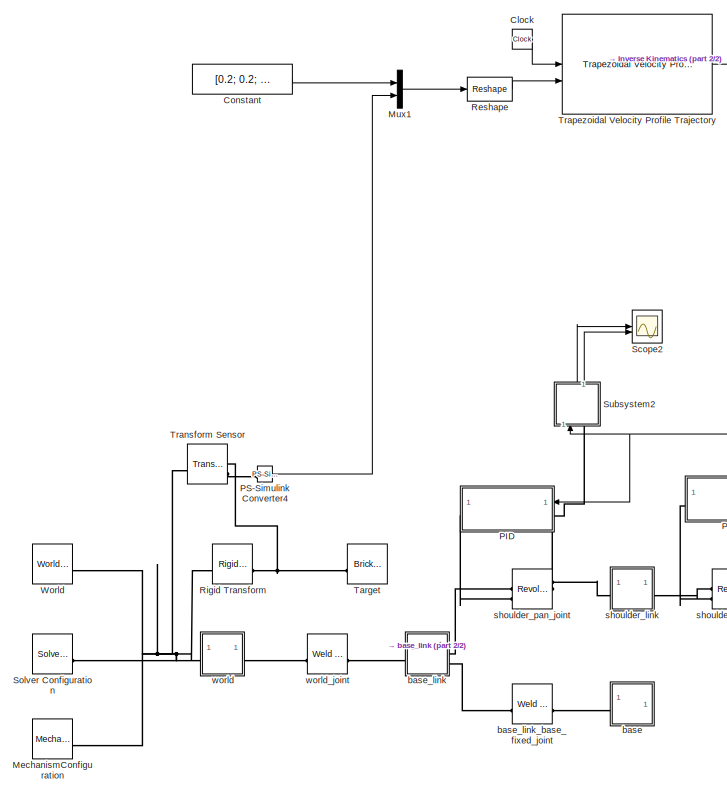
[diagram: root canvas - part 1/2, left side, full height]
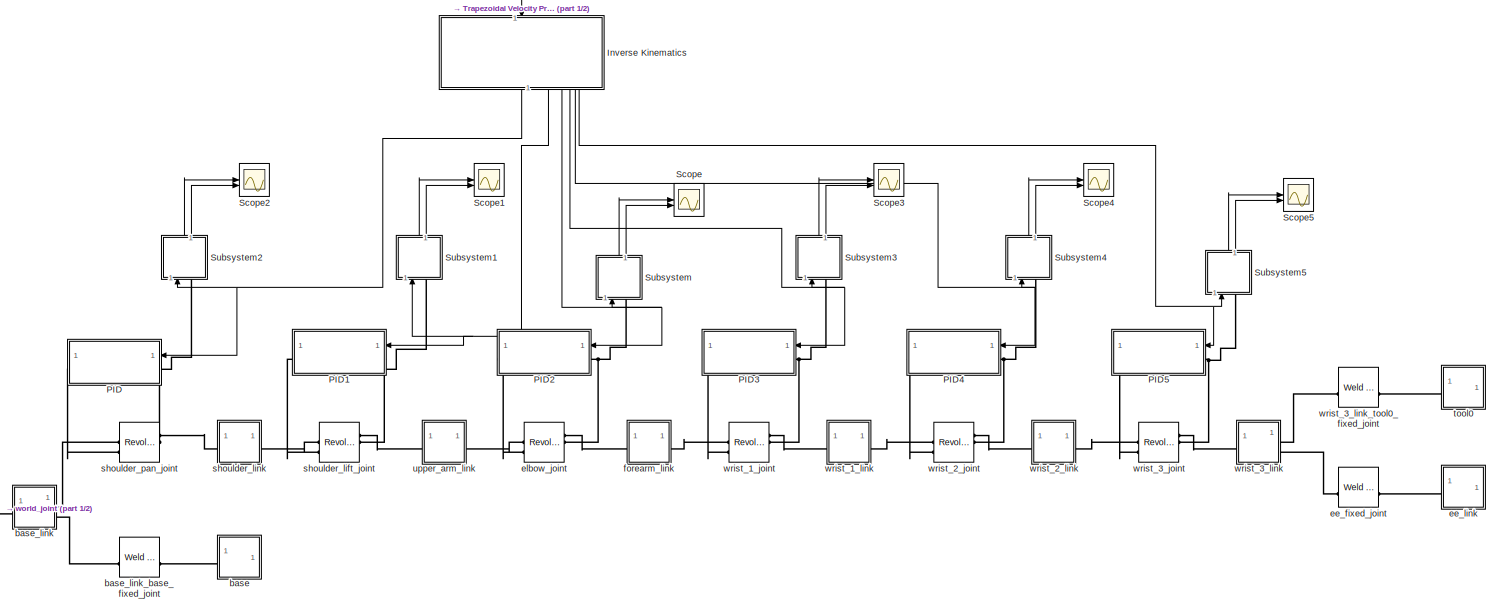
[diagram: root canvas - part 2/2, most of the canvas]
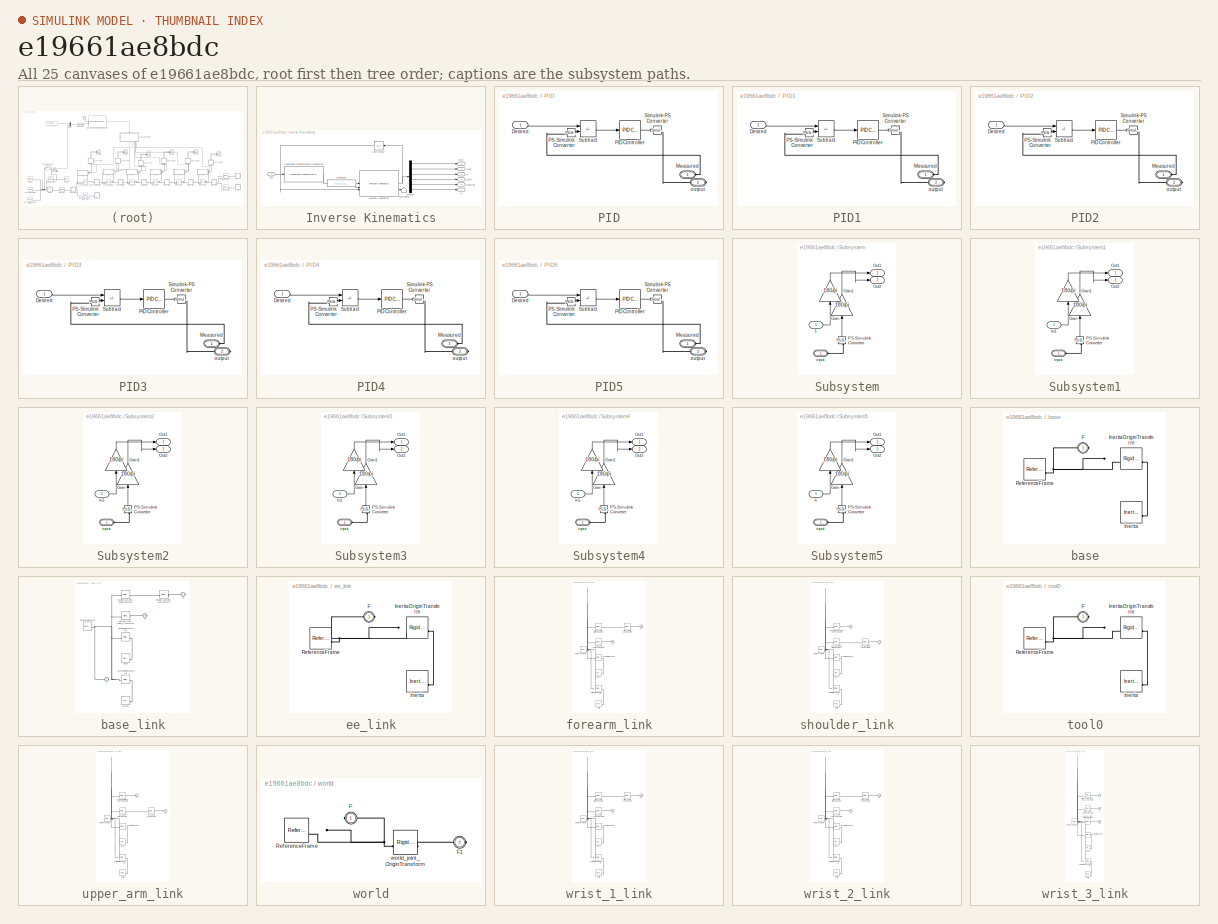
[diagram: thumbnail index - all 25 canvases of the model, root first then tree order]
MODEL slx_e19661ae8bdc
KIND model
CONFIG AbsTol = 1e-4
CONFIG EnableMultiTasking = off
CONFIG FixedStep = 0.001
CONFIG MaxStep = auto
CONFIG MinStep = auto
CONFIG RelTol = 1e-3
CONFIG SampleTimeConstraint = Unconstrained
CONFIG SolverName = ode15s
CONFIG StartTime = 0.0
CONFIG StopTime = 5
BLOCK [Clock] Clock
BLOCK [Constant] Constant
  Value = [0.2; 0.2; 0.2]
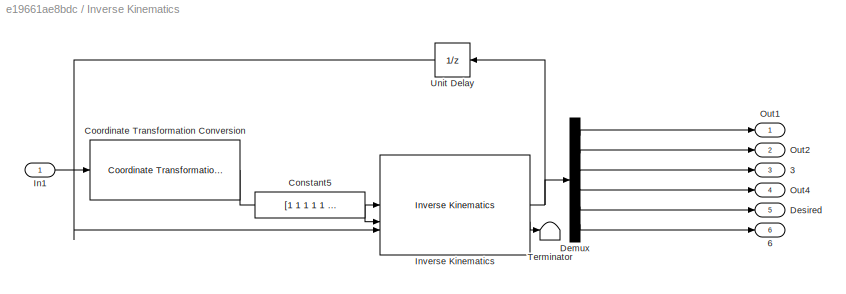
BLOCK [SubSystem] Inverse Kinematics
  NameLocation = left
BLOCK [Outport] Inverse Kinematics/3
  NameLocation = right
  Port = 3
BLOCK [Outport] Inverse Kinematics/6
  Port = 6
BLOCK [Constant] Inverse Kinematics/Constant5
  Value = [1 1 1 1 1 1]
BLOCK [Reference] Inverse Kinematics/Coordinate Transformation Conversion  REF=robotcorelib/Coordinate Transformation Conversion
  LibrarySourceBlock = robotutilslib/Coordinate Transformation Conversion
  SourceBlock = robotcorelib/Coordinate Transformation Conversion
  SourceType = robotics.slcore.internal.block.CoordinateTransformationConversion
BLOCK [Demux] Inverse Kinematics/Demux
  Outputs = 6
BLOCK [Outport] Inverse Kinematics/Desired
  Port = 5
BLOCK [Inport] Inverse Kinematics/In1
BLOCK [Reference] Inverse Kinematics/Inverse Kinematics  REF=robotmaniplib/Inverse Kinematics
  SourceBlock = robotmaniplib/Inverse Kinematics
  SourceType = Inverse Kinematics
BLOCK [Outport] Inverse Kinematics/Out1
  NameLocation = top
BLOCK [Outport] Inverse Kinematics/Out2
  NameLocation = top
  Port = 2
BLOCK [Outport] Inverse Kinematics/Out4
  Port = 4
BLOCK [Terminator] Inverse Kinematics/Terminator
BLOCK [UnitDelay] Inverse Kinematics/Unit Delay
  HasFrameUpgradeWarning = on
  InitialCondition = [0;0;0;0;0;0]
  SampleTime = -1
BLOCK [Reference] MechanismConfiguration  REF=sm_lib/Utilities/Mechanism
Configuration
  SourceBlock = sm_lib/Utilities/Mechanism\nConfiguration
  SourceType = Mechanism\nConfiguration
BLOCK [Mux] Mux1
  DisplayOption = bar
  Inputs = 2
BLOCK [SubSystem] PID
BLOCK [Inport] PID/Desired
BLOCK [PMIOPort] PID/Measured
  Side = Left
BLOCK [Reference] PID/PID Controller  REF=slpidlib/PID Controller
  LibrarySourceBlock = simulink/Continuous/PID Controller
  SourceBlock = slpidlib/PID Controller
  SourceType = PID 1dof
BLOCK [Reference] PID/PS-Simulink Converter  REF=nesl_utility/PS-Simulink
Converter
  SourceBlock = nesl_utility/PS-Simulink\nConverter
  SourceType = PS-Simulink\nConverter
BLOCK [Reference] PID/Simulink-PS Converter  REF=nesl_utility/Simulink-PS
Converter
  SourceBlock = nesl_utility/Simulink-PS\nConverter
  SourceType = Simulink-PS\nConverter
BLOCK [Sum] PID/Subtract
  IconShape = rectangular
  Inputs = +-
BLOCK [PMIOPort] PID/output
  Port = 2
  Side = Right
BLOCK [SubSystem] PID1
BLOCK [Inport] PID1/Desired
BLOCK [PMIOPort] PID1/Measured
  Side = Left
BLOCK [Reference] PID1/PID Controller  REF=slpidlib/PID Controller
  LibrarySourceBlock = simulink/Continuous/PID Controller
  SourceBlock = slpidlib/PID Controller
  SourceType = PID 1dof
BLOCK [Reference] PID1/PS-Simulink Converter  REF=nesl_utility/PS-Simulink
Converter
  SourceBlock = nesl_utility/PS-Simulink\nConverter
  SourceType = PS-Simulink\nConverter
BLOCK [Reference] PID1/Simulink-PS Converter  REF=nesl_utility/Simulink-PS
Converter
  SourceBlock = nesl_utility/Simulink-PS\nConverter
  SourceType = Simulink-PS\nConverter
BLOCK [Sum] PID1/Subtract
  IconShape = rectangular
  Inputs = +-
BLOCK [PMIOPort] PID1/output
  Port = 2
  Side = Right
BLOCK [SubSystem] PID2
BLOCK [Inport] PID2/Desired
BLOCK [PMIOPort] PID2/Measured
  Side = Left
BLOCK [Reference] PID2/PID Controller  REF=slpidlib/PID Controller
  LibrarySourceBlock = simulink/Continuous/PID Controller
  SourceBlock = slpidlib/PID Controller
  SourceType = PID 1dof
BLOCK [Reference] PID2/PS-Simulink Converter  REF=nesl_utility/PS-Simulink
Converter
  SourceBlock = nesl_utility/PS-Simulink\nConverter
  SourceType = PS-Simulink\nConverter
BLOCK [Reference] PID2/Simulink-PS Converter  REF=nesl_utility/Simulink-PS
Converter
  SourceBlock = nesl_utility/Simulink-PS\nConverter
  SourceType = Simulink-PS\nConverter
BLOCK [Sum] PID2/Subtract
  IconShape = rectangular
  Inputs = +-
BLOCK [PMIOPort] PID2/output
  Port = 2
  Side = Right
BLOCK [SubSystem] PID3
BLOCK [Inport] PID3/Desired
BLOCK [PMIOPort] PID3/Measured
  Side = Left
BLOCK [Reference] PID3/PID Controller  REF=slpidlib/PID Controller
  LibrarySourceBlock = simulink/Continuous/PID Controller
  SourceBlock = slpidlib/PID Controller
  SourceType = PID 1dof
BLOCK [Reference] PID3/PS-Simulink Converter  REF=nesl_utility/PS-Simulink
Converter
  SourceBlock = nesl_utility/PS-Simulink\nConverter
  SourceType = PS-Simulink\nConverter
BLOCK [Reference] PID3/Simulink-PS Converter  REF=nesl_utility/Simulink-PS
Converter
  SourceBlock = nesl_utility/Simulink-PS\nConverter
  SourceType = Simulink-PS\nConverter
BLOCK [Sum] PID3/Subtract
  IconShape = rectangular
  Inputs = +-
BLOCK [PMIOPort] PID3/output
  Port = 2
  Side = Right
BLOCK [SubSystem] PID4
BLOCK [Inport] PID4/Desired
BLOCK [PMIOPort] PID4/Measured
  Side = Left
BLOCK [Reference] PID4/PID Controller  REF=slpidlib/PID Controller
  LibrarySourceBlock = simulink/Continuous/PID Controller
  SourceBlock = slpidlib/PID Controller
  SourceType = PID 1dof
BLOCK [Reference] PID4/PS-Simulink Converter  REF=nesl_utility/PS-Simulink
Converter
  SourceBlock = nesl_utility/PS-Simulink\nConverter
  SourceType = PS-Simulink\nConverter
BLOCK [Reference] PID4/Simulink-PS Converter  REF=nesl_utility/Simulink-PS
Converter
  SourceBlock = nesl_utility/Simulink-PS\nConverter
  SourceType = Simulink-PS\nConverter
BLOCK [Sum] PID4/Subtract
  IconShape = rectangular
  Inputs = +-
BLOCK [PMIOPort] PID4/output
  Port = 2
  Side = Right
BLOCK [SubSystem] PID5
BLOCK [Inport] PID5/Desired
BLOCK [PMIOPort] PID5/Measured
  Side = Left
BLOCK [Reference] PID5/PID Controller  REF=slpidlib/PID Controller
  LibrarySourceBlock = simulink/Continuous/PID Controller
  SourceBlock = slpidlib/PID Controller
  SourceType = PID 1dof
BLOCK [Reference] PID5/PS-Simulink Converter  REF=nesl_utility/PS-Simulink
Converter
  SourceBlock = nesl_utility/PS-Simulink\nConverter
  SourceType = PS-Simulink\nConverter
BLOCK [Reference] PID5/Simulink-PS Converter  REF=nesl_utility/Simulink-PS
Converter
  SourceBlock = nesl_utility/Simulink-PS\nConverter
  SourceType = Simulink-PS\nConverter
BLOCK [Sum] PID5/Subtract
  IconShape = rectangular
  Inputs = +-
BLOCK [PMIOPort] PID5/output
  Port = 2
  Side = Right
BLOCK [Reference] PS-Simulink Converter4  REF=nesl_utility/PS-Simulink
Converter
  SourceBlock = nesl_utility/PS-Simulink\nConverter
  SourceType = PS-Simulink\nConverter
BLOCK [Reshape] Reshape
  OutputDimensionality = Customize
  OutputDimensions = [3 2]
BLOCK [Reference] Rigid Transform  REF=sm_lib/Frames and
Transforms/Rigid
Transform
  SourceBlock = sm_lib/Frames and\nTransforms/Rigid\nTransform
  SourceType = Rigid\nTransform
BLOCK [Scope] Scope
  ActiveDisplayYMaximum = 202.56245542600516
  ActiveDisplayYMinimum = -225.28958811023898
  Commented = on
  Floating = off
  GraphicalSettings = {"Style":{"BackgroundColor":[0.12941176470588237,0.12941176470588237,0.12941176470588237],"AxesColor":[0.07058823529411765,0.07058823529411765,0.07058823529411765],"LabelsColor":[0.8509803921568627,0.8509803921568627,0.8509803921568627],"PreserveColors":false,"Visible":[true,true],"LineStyle":["-","-"],"LineWidth":[1.5,1.5],"BarWidth":[0.9,0.9],"LineColor":["auto","auto"],"LineFaceAlpha":[1,1],"Li...<+2128ch>
  MultipleDisplayCache = [{"MaxYLimMag":225.28958811023898,"MaxYLimReal":202.56245542600516,"MinYLimMag":0,"MinYLimReal":-225.28958811023898,"PlotAsMagnitudePhase":false,"ShowGrid":true,"ShowLegend":true,"Title":"%<SignalLabel>","YLabel":""}]
  NumInputPorts = 2
  ScopeFrameLocation = window
  ShowLegend = on
  WasSavedAsWebScope = on
  WindowPosition = [607.000000,280.000000,908.000000,592.000000,]
BLOCK [Scope] Scope1
  ActiveDisplayYMaximum = 87.29011256368284
  ActiveDisplayYMinimum = -414.43673032319282
  Commented = on
  DataLoggingVariableName = ScopeData1
  Floating = off
  GraphicalSettings = {"Style":{"BackgroundColor":[0.12941176470588237,0.12941176470588237,0.12941176470588237],"AxesColor":[0.07058823529411765,0.07058823529411765,0.07058823529411765],"LabelsColor":[0.8509803921568627,0.8509803921568627,0.8509803921568627],"PreserveColors":false,"Visible":[true,true],"LineStyle":["-","-"],"LineWidth":[1.5,1.5],"BarWidth":[0.9,0.9],"LineColor":["auto","auto"],"LineFaceAlpha":[1,1],"Li...<+2132ch>
  MultipleDisplayCache = [{"MaxYLimMag":414.43673032319282,"MaxYLimReal":87.29011256368284,"MinYLimMag":0,"MinYLimReal":-414.43673032319282,"PlotAsMagnitudePhase":false,"ShowGrid":true,"ShowLegend":true,"Title":"%<SignalLabel>","YLabel":""}]
  NumInputPorts = 2
  ScopeFrameLocation = window
  ShowLegend = on
  WasSavedAsWebScope = on
  WindowPosition = [925.000000,497.000000,732.000000,459.000000,]
BLOCK [Scope] Scope2
  ActiveDisplayYMaximum = 45.031871239717681
  ActiveDisplayYMinimum = -405.28684115745921
  Commented = on
  DataLoggingVariableName = ScopeData2
  Floating = off
  GraphicalSettings = {"Style":{"BackgroundColor":[0.12941176470588237,0.12941176470588237,0.12941176470588237],"AxesColor":[0.07058823529411765,0.07058823529411765,0.07058823529411765],"LabelsColor":[0.8509803921568627,0.8509803921568627,0.8509803921568627],"PreserveColors":false,"Visible":[true,true],"LineStyle":["-","-"],"LineWidth":[1.5,1.5],"BarWidth":[0.9,0.9],"LineColor":["auto","auto"],"LineFaceAlpha":[1,1],"Li...<+2132ch>
  MultipleDisplayCache = [{"MaxYLimMag":405.28684115745921,"MaxYLimReal":45.031871239717681,"MinYLimMag":0,"MinYLimReal":-405.28684115745921,"PlotAsMagnitudePhase":false,"ShowGrid":true,"ShowLegend":true,"Title":"%<SignalLabel>","YLabel":""}]
  NumInputPorts = 2
  ScopeFrameLocation = window
  ShowLegend = on
  WasSavedAsWebScope = on
  WindowPosition = [425.000000,235.000000,732.000000,459.000000,]
BLOCK [Scope] Scope3
  ActiveDisplayYMaximum = 57.261087257852438
  ActiveDisplayYMinimum = -406.36234302868422
  Commented = on
  DataLoggingVariableName = ScopeData3
  Floating = off
  GraphicalSettings = {"Style":{"BackgroundColor":[0.12941176470588237,0.12941176470588237,0.12941176470588237],"AxesColor":[0.07058823529411765,0.07058823529411765,0.07058823529411765],"LabelsColor":[0.8509803921568627,0.8509803921568627,0.8509803921568627],"PreserveColors":false,"Visible":[true,true],"LineStyle":["-","-"],"LineWidth":[1.5,1.5],"BarWidth":[0.9,0.9],"LineColor":["auto","auto"],"LineFaceAlpha":[1,1],"Li...<+2126ch>
  MultipleDisplayCache = [{"MaxYLimMag":406.36234302868422,"MaxYLimReal":57.261087257852438,"MinYLimMag":0,"MinYLimReal":-406.36234302868422,"PlotAsMagnitudePhase":false,"ShowGrid":true,"ShowLegend":true,"Title":"%<SignalLabel>","YLabel":""}]
  NumInputPorts = 2
  ScopeFrameLocation = window
  ShowLegend = on
  WasSavedAsWebScope = on
  WindowPosition = [717.000000,306.000000,732.000000,459.000000,]
BLOCK [Scope] Scope4
  ActiveDisplayYMaximum = 438.80355858492811
  ActiveDisplayYMinimum = -349.232027264116
  Commented = on
  DataLoggingVariableName = ScopeData4
  Floating = off
  GraphicalSettings = {"Style":{"BackgroundColor":[0.12941176470588237,0.12941176470588237,0.12941176470588237],"AxesColor":[0.07058823529411765,0.07058823529411765,0.07058823529411765],"LabelsColor":[0.8509803921568627,0.8509803921568627,0.8509803921568627],"PreserveColors":false,"Visible":[true,true],"LineStyle":["-","-"],"LineWidth":[1.5,1.5],"BarWidth":[0.9,0.9],"LineColor":["auto","auto"],"LineFaceAlpha":[1,1],"Li...<+2130ch>
  MultipleDisplayCache = [{"MaxYLimMag":438.80355858492811,"MaxYLimReal":438.80355858492811,"MinYLimMag":0,"MinYLimReal":-349.232027264116,"PlotAsMagnitudePhase":false,"ShowGrid":true,"ShowLegend":true,"Title":"%<SignalLabel>","YLabel":""}]
  NumInputPorts = 2
  ScopeFrameLocation = window
  ShowLegend = on
  WasSavedAsWebScope = on
  WindowPosition = [776.000000,258.000000,732.000000,459.000000,]
BLOCK [Scope] Scope5
  ActiveDisplayYMaximum = 456.50769702271174
  ActiveDisplayYMinimum = -454.83123589994807
  Commented = on
  DataLoggingVariableName = ScopeData5
  Floating = off
  GraphicalSettings = {"Style":{"BackgroundColor":[0.12941176470588237,0.12941176470588237,0.12941176470588237],"AxesColor":[0.07058823529411765,0.07058823529411765,0.07058823529411765],"LabelsColor":[0.8509803921568627,0.8509803921568627,0.8509803921568627],"PreserveColors":false,"Visible":[true,true],"LineStyle":["-","-"],"LineWidth":[1.5,1.5],"BarWidth":[0.9,0.9],"LineColor":["auto","auto"],"LineFaceAlpha":[1,1],"Li...<+2128ch>
  MultipleDisplayCache = [{"MaxYLimMag":456.50769702271174,"MaxYLimReal":456.50769702271174,"MinYLimMag":0,"MinYLimReal":-454.83123589994807,"PlotAsMagnitudePhase":false,"ShowGrid":true,"ShowLegend":true,"Title":"%<SignalLabel>","YLabel":""}]
  NumInputPorts = 2
  ScopeFrameLocation = window
  ShowLegend = on
  WasSavedAsWebScope = on
  WindowPosition = [678.000000,358.000000,732.000000,459.000000,]
BLOCK [Reference] Solver Configuration  REF=nesl_utility/Solver
Configuration
  SourceBlock = nesl_utility/Solver\nConfiguration
  SourceType = Solver\nConfiguration
BLOCK [SubSystem] Subsystem
  Commented = on
  NameLocation = right
BLOCK [Inport] Subsystem/1
BLOCK [Gain] Subsystem/Gain
  Gain = 180/pi
  NameLocation = right
BLOCK [Gain] Subsystem/Gain1
  Gain = 180/pi
  NameLocation = right
BLOCK [Outport] Subsystem/Out1
BLOCK [Outport] Subsystem/Out2
  Port = 2
BLOCK [Reference] Subsystem/PS-Simulink Converter  REF=nesl_utility/PS-Simulink
Converter
  NameLocation = right
  SourceBlock = nesl_utility/PS-Simulink\nConverter
  SourceType = PS-Simulink\nConverter
BLOCK [PMIOPort] Subsystem/input
  Side = Left
BLOCK [SubSystem] Subsystem1
  Commented = on
  NameLocation = right
BLOCK [Gain] Subsystem1/Gain
  Gain = 180/pi
  NameLocation = right
BLOCK [Gain] Subsystem1/Gain1
  Gain = 180/pi
  NameLocation = right
BLOCK [Inport] Subsystem1/In1
BLOCK [Outport] Subsystem1/Out1
BLOCK [Outport] Subsystem1/Out2
  Port = 2
BLOCK [Reference] Subsystem1/PS-Simulink Converter  REF=nesl_utility/PS-Simulink
Converter
  NameLocation = right
  SourceBlock = nesl_utility/PS-Simulink\nConverter
  SourceType = PS-Simulink\nConverter
BLOCK [PMIOPort] Subsystem1/input
  Side = Left
BLOCK [SubSystem] Subsystem2
  Commented = on
  NameLocation = right
BLOCK [Gain] Subsystem2/Gain
  Gain = 180/pi
  NameLocation = right
BLOCK [Gain] Subsystem2/Gain1
  Gain = 180/pi
  NameLocation = right
BLOCK [Inport] Subsystem2/In1
BLOCK [Outport] Subsystem2/Out1
BLOCK [Outport] Subsystem2/Out2
  Port = 2
BLOCK [Reference] Subsystem2/PS-Simulink Converter  REF=nesl_utility/PS-Simulink
Converter
  NameLocation = right
  SourceBlock = nesl_utility/PS-Simulink\nConverter
  SourceType = PS-Simulink\nConverter
BLOCK [PMIOPort] Subsystem2/input
  Side = Left
BLOCK [SubSystem] Subsystem3
  Commented = on
  NameLocation = right
BLOCK [Gain] Subsystem3/Gain
  Gain = 180/pi
  NameLocation = right
BLOCK [Gain] Subsystem3/Gain1
  Gain = 180/pi
  NameLocation = right
BLOCK [Inport] Subsystem3/In1
BLOCK [Outport] Subsystem3/Out1
BLOCK [Outport] Subsystem3/Out2
  Port = 2
BLOCK [Reference] Subsystem3/PS-Simulink Converter  REF=nesl_utility/PS-Simulink
Converter
  NameLocation = right
  SourceBlock = nesl_utility/PS-Simulink\nConverter
  SourceType = PS-Simulink\nConverter
BLOCK [PMIOPort] Subsystem3/input
  Side = Left
BLOCK [SubSystem] Subsystem4
  Commented = on
  NameLocation = right
BLOCK [Gain] Subsystem4/Gain
  Gain = 180/pi
  NameLocation = right
BLOCK [Gain] Subsystem4/Gain1
  Gain = 180/pi
  NameLocation = right
BLOCK [Inport] Subsystem4/In1
BLOCK [Outport] Subsystem4/Out1
BLOCK [Outport] Subsystem4/Out2
  Port = 2
BLOCK [Reference] Subsystem4/PS-Simulink Converter  REF=nesl_utility/PS-Simulink
Converter
  NameLocation = right
  SourceBlock = nesl_utility/PS-Simulink\nConverter
  SourceType = PS-Simulink\nConverter
BLOCK [PMIOPort] Subsystem4/input
  Side = Left
BLOCK [SubSystem] Subsystem5
  Commented = on
  NameLocation = right
BLOCK [Inport] Subsystem5/6
BLOCK [Gain] Subsystem5/Gain
  Gain = 180/pi
  NameLocation = right
BLOCK [Gain] Subsystem5/Gain1
  Gain = 180/pi
  NameLocation = right
BLOCK [Outport] Subsystem5/Out1
BLOCK [Outport] Subsystem5/Out2
  Port = 2
BLOCK [Reference] Subsystem5/PS-Simulink Converter  REF=nesl_utility/PS-Simulink
Converter
  NameLocation = right
  SourceBlock = nesl_utility/PS-Simulink\nConverter
  SourceType = PS-Simulink\nConverter
BLOCK [PMIOPort] Subsystem5/input
  Side = Left
BLOCK [Reference] Target  REF=sm_lib/Body Elements/Brick Solid
  SourceBlock = sm_lib/Body Elements/Brick Solid
  SourceType = Brick Solid
BLOCK [Reference] Transform Sensor  REF=sm_lib/Frames and
Transforms/Transform
Sensor
  SourceBlock = sm_lib/Frames and\nTransforms/Transform\nSensor
  SourceType = Transform\nSensor
BLOCK [Reference] Trapezoidal Velocity Profile Trajectory  REF=robotcorelib/Trapezoidal Velocity Profile Trajectory
  LibrarySourceBlock = robotutilslib/Trapezoidal Velocity Profile Trajectory
  SourceBlock = robotcorelib/Trapezoidal Velocity Profile Trajectory
  SourceType = robotics.slcore.internal.block.TrapVelTrajSys
BLOCK [Reference] World  REF=sm_lib/Frames and
Transforms/World Frame
  SourceBlock = sm_lib/Frames and\nTransforms/World Frame
  SourceType = World Frame
BLOCK [SubSystem] base
BLOCK [PMIOPort] base/F
  Side = Left
BLOCK [Reference] base/Inertia  REF=sm_lib/Body Elements/Inertia
  SourceBlock = sm_lib/Body Elements/Inertia
  SourceType = Inertia
BLOCK [Reference] base/InertiaOriginTransform  REF=sm_lib/Frames and
Transforms/Rigid
Transform
  SourceBlock = sm_lib/Frames and\nTransforms/Rigid\nTransform
  SourceType = Rigid\nTransform
BLOCK [Reference] base/ReferenceFrame  REF=sm_lib/Frames and
Transforms/Reference
Frame
  SourceBlock = sm_lib/Frames and\nTransforms/Reference\nFrame
  SourceType = Reference\nFrame
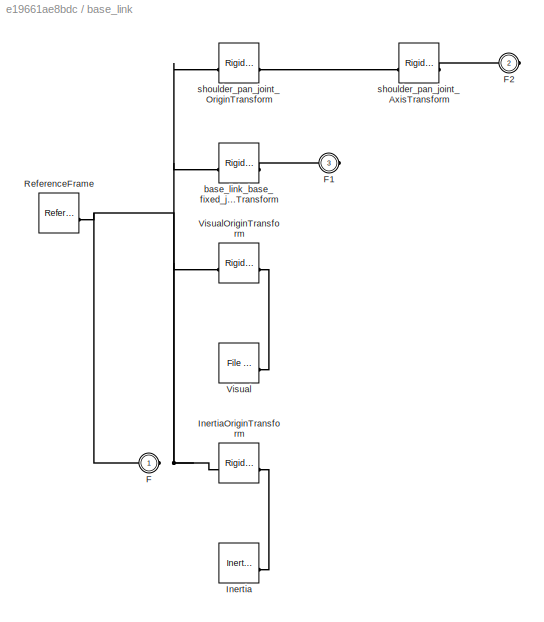
BLOCK [SubSystem] base_link
BLOCK [PMIOPort] base_link/F
  Side = Left
BLOCK [PMIOPort] base_link/F1
  Port = 3
  Side = Right
BLOCK [PMIOPort] base_link/F2
  Port = 2
  Side = Right
BLOCK [Reference] base_link/Inertia  REF=sm_lib/Body Elements/Inertia
  SourceBlock = sm_lib/Body Elements/Inertia
  SourceType = Inertia
BLOCK [Reference] base_link/InertiaOriginTransform  REF=sm_lib/Frames and
Transforms/Rigid
Transform
  SourceBlock = sm_lib/Frames and\nTransforms/Rigid\nTransform
  SourceType = Rigid\nTransform
BLOCK [Reference] base_link/ReferenceFrame  REF=sm_lib/Frames and
Transforms/Reference
Frame
  SourceBlock = sm_lib/Frames and\nTransforms/Reference\nFrame
  SourceType = Reference\nFrame
BLOCK [Reference] base_link/Visual  REF=sm_lib/Body Elements/File Solid
  SourceBlock = sm_lib/Body Elements/File Solid
  SourceType = File Solid
BLOCK [Reference] base_link/VisualOriginTransform  REF=sm_lib/Frames and
Transforms/Rigid
Transform
  SourceBlock = sm_lib/Frames and\nTransforms/Rigid\nTransform
  SourceType = Rigid\nTransform
BLOCK [Reference] base_link/base_link_base_fixed_joint_OriginTransform  REF=sm_lib/Frames and
Transforms/Rigid
Transform
  SourceBlock = sm_lib/Frames and\nTransforms/Rigid\nTransform
  SourceType = Rigid\nTransform
BLOCK [Reference] base_link/shoulder_pan_joint_AxisTransform  REF=sm_lib/Frames and
Transforms/Rigid
Transform
  SourceBlock = sm_lib/Frames and\nTransforms/Rigid\nTransform
  SourceType = Rigid\nTransform
BLOCK [Reference] base_link/shoulder_pan_joint_OriginTransform  REF=sm_lib/Frames and
Transforms/Rigid
Transform
  SourceBlock = sm_lib/Frames and\nTransforms/Rigid\nTransform
  SourceType = Rigid\nTransform
BLOCK [Reference] base_link_base_fixed_joint  REF=sm_lib/Joints/Weld Joint
  SourceBlock = sm_lib/Joints/Weld Joint
  SourceType = Weld Joint
BLOCK [Reference] ee_fixed_joint  REF=sm_lib/Joints/Weld Joint
  SourceBlock = sm_lib/Joints/Weld Joint
  SourceType = Weld Joint
BLOCK [SubSystem] ee_link
BLOCK [PMIOPort] ee_link/F
  Side = Left
BLOCK [Reference] ee_link/Inertia  REF=sm_lib/Body Elements/Inertia
  SourceBlock = sm_lib/Body Elements/Inertia
  SourceType = Inertia
BLOCK [Reference] ee_link/InertiaOriginTransform  REF=sm_lib/Frames and
Transforms/Rigid
Transform
  SourceBlock = sm_lib/Frames and\nTransforms/Rigid\nTransform
  SourceType = Rigid\nTransform
BLOCK [Reference] ee_link/ReferenceFrame  REF=sm_lib/Frames and
Transforms/Reference
Frame
  SourceBlock = sm_lib/Frames and\nTransforms/Reference\nFrame
  SourceType = Reference\nFrame
BLOCK [Reference] elbow_joint  REF=sm_lib/Joints/Revolute Joint
  SourceBlock = sm_lib/Joints/Revolute Joint
  SourceType = Revolute Joint
BLOCK [SubSystem] forearm_link
BLOCK [PMIOPort] forearm_link/F
  Side = Left
BLOCK [PMIOPort] forearm_link/F1
  Port = 2
  Side = Right
BLOCK [Reference] forearm_link/Inertia  REF=sm_lib/Body Elements/Inertia
  SourceBlock = sm_lib/Body Elements/Inertia
  SourceType = Inertia
BLOCK [Reference] forearm_link/InertiaOriginTransform  REF=sm_lib/Frames and
Transforms/Rigid
Transform
  SourceBlock = sm_lib/Frames and\nTransforms/Rigid\nTransform
  SourceType = Rigid\nTransform
BLOCK [Reference] forearm_link/ReferenceFrame  REF=sm_lib/Frames and
Transforms/Reference
Frame
  SourceBlock = sm_lib/Frames and\nTransforms/Reference\nFrame
  SourceType = Reference\nFrame
BLOCK [Reference] forearm_link/Visual  REF=sm_lib/Body Elements/File Solid
  SourceBlock = sm_lib/Body Elements/File Solid
  SourceType = File Solid
BLOCK [Reference] forearm_link/VisualOriginTransform  REF=sm_lib/Frames and
Transforms/Rigid
Transform
  SourceBlock = sm_lib/Frames and\nTransforms/Rigid\nTransform
  SourceType = Rigid\nTransform
BLOCK [Reference] forearm_link/elbow_joint_AxisInvTransform  REF=sm_lib/Frames and
Transforms/Rigid
Transform
  SourceBlock = sm_lib/Frames and\nTransforms/Rigid\nTransform
  SourceType = Rigid\nTransform
BLOCK [Reference] forearm_link/wrist_1_joint_AxisTransform  REF=sm_lib/Frames and
Transforms/Rigid
Transform
  SourceBlock = sm_lib/Frames and\nTransforms/Rigid\nTransform
  SourceType = Rigid\nTransform
BLOCK [Reference] forearm_link/wrist_1_joint_OriginTransform  REF=sm_lib/Frames and
Transforms/Rigid
Transform
  SourceBlock = sm_lib/Frames and\nTransforms/Rigid\nTransform
  SourceType = Rigid\nTransform
BLOCK [Reference] shoulder_lift_joint  REF=sm_lib/Joints/Revolute Joint
  SourceBlock = sm_lib/Joints/Revolute Joint
  SourceType = Revolute Joint
BLOCK [SubSystem] shoulder_link
BLOCK [PMIOPort] shoulder_link/F
  Side = Left
BLOCK [PMIOPort] shoulder_link/F1
  Port = 2
  Side = Right
BLOCK [Reference] shoulder_link/Inertia  REF=sm_lib/Body Elements/Inertia
  SourceBlock = sm_lib/Body Elements/Inertia
  SourceType = Inertia
BLOCK [Reference] shoulder_link/InertiaOriginTransform  REF=sm_lib/Frames and
Transforms/Rigid
Transform
  SourceBlock = sm_lib/Frames and\nTransforms/Rigid\nTransform
  SourceType = Rigid\nTransform
BLOCK [Reference] shoulder_link/ReferenceFrame  REF=sm_lib/Frames and
Transforms/Reference
Frame
  SourceBlock = sm_lib/Frames and\nTransforms/Reference\nFrame
  SourceType = Reference\nFrame
BLOCK [Reference] shoulder_link/Visual  REF=sm_lib/Body Elements/File Solid
  SourceBlock = sm_lib/Body Elements/File Solid
  SourceType = File Solid
BLOCK [Reference] shoulder_link/VisualOriginTransform  REF=sm_lib/Frames and
Transforms/Rigid
Transform
  SourceBlock = sm_lib/Frames and\nTransforms/Rigid\nTransform
  SourceType = Rigid\nTransform
BLOCK [Reference] shoulder_link/shoulder_lift_joint_AxisTransform  REF=sm_lib/Frames and
Transforms/Rigid
Transform
  SourceBlock = sm_lib/Frames and\nTransforms/Rigid\nTransform
  SourceType = Rigid\nTransform
BLOCK [Reference] shoulder_link/shoulder_lift_joint_OriginTransform  REF=sm_lib/Frames and
Transforms/Rigid
Transform
  SourceBlock = sm_lib/Frames and\nTransforms/Rigid\nTransform
  SourceType = Rigid\nTransform
BLOCK [Reference] shoulder_link/shoulder_pan_joint_AxisInvTransform  REF=sm_lib/Frames and
Transforms/Rigid
Transform
  SourceBlock = sm_lib/Frames and\nTransforms/Rigid\nTransform
  SourceType = Rigid\nTransform
BLOCK [Reference] shoulder_pan_joint  REF=sm_lib/Joints/Revolute Joint
  SourceBlock = sm_lib/Joints/Revolute Joint
  SourceType = Revolute Joint
BLOCK [SubSystem] tool0
BLOCK [PMIOPort] tool0/F
  Side = Left
BLOCK [Reference] tool0/Inertia  REF=sm_lib/Body Elements/Inertia
  SourceBlock = sm_lib/Body Elements/Inertia
  SourceType = Inertia
BLOCK [Reference] tool0/InertiaOriginTransform  REF=sm_lib/Frames and
Transforms/Rigid
Transform
  SourceBlock = sm_lib/Frames and\nTransforms/Rigid\nTransform
  SourceType = Rigid\nTransform
BLOCK [Reference] tool0/ReferenceFrame  REF=sm_lib/Frames and
Transforms/Reference
Frame
  SourceBlock = sm_lib/Frames and\nTransforms/Reference\nFrame
  SourceType = Reference\nFrame
BLOCK [SubSystem] upper_arm_link
BLOCK [PMIOPort] upper_arm_link/F
  Side = Left
BLOCK [PMIOPort] upper_arm_link/F1
  Port = 2
  Side = Right
BLOCK [Reference] upper_arm_link/Inertia  REF=sm_lib/Body Elements/Inertia
  SourceBlock = sm_lib/Body Elements/Inertia
  SourceType = Inertia
BLOCK [Reference] upper_arm_link/InertiaOriginTransform  REF=sm_lib/Frames and
Transforms/Rigid
Transform
  SourceBlock = sm_lib/Frames and\nTransforms/Rigid\nTransform
  SourceType = Rigid\nTransform
BLOCK [Reference] upper_arm_link/ReferenceFrame  REF=sm_lib/Frames and
Transforms/Reference
Frame
  SourceBlock = sm_lib/Frames and\nTransforms/Reference\nFrame
  SourceType = Reference\nFrame
BLOCK [Reference] upper_arm_link/Visual  REF=sm_lib/Body Elements/File Solid
  SourceBlock = sm_lib/Body Elements/File Solid
  SourceType = File Solid
BLOCK [Reference] upper_arm_link/VisualOriginTransform  REF=sm_lib/Frames and
Transforms/Rigid
Transform
  SourceBlock = sm_lib/Frames and\nTransforms/Rigid\nTransform
  SourceType = Rigid\nTransform
BLOCK [Reference] upper_arm_link/elbow_joint_AxisTransform  REF=sm_lib/Frames and
Transforms/Rigid
Transform
  SourceBlock = sm_lib/Frames and\nTransforms/Rigid\nTransform
  SourceType = Rigid\nTransform
BLOCK [Reference] upper_arm_link/elbow_joint_OriginTransform  REF=sm_lib/Frames and
Transforms/Rigid
Transform
  SourceBlock = sm_lib/Frames and\nTransforms/Rigid\nTransform
  SourceType = Rigid\nTransform
BLOCK [Reference] upper_arm_link/shoulder_lift_joint_AxisInvTransform  REF=sm_lib/Frames and
Transforms/Rigid
Transform
  SourceBlock = sm_lib/Frames and\nTransforms/Rigid\nTransform
  SourceType = Rigid\nTransform
BLOCK [SubSystem] world
BLOCK [PMIOPort] world/F
  Side = Left
BLOCK [PMIOPort] world/F1
  Port = 2
  Side = Right
BLOCK [Reference] world/ReferenceFrame  REF=sm_lib/Frames and
Transforms/Reference
Frame
  SourceBlock = sm_lib/Frames and\nTransforms/Reference\nFrame
  SourceType = Reference\nFrame
BLOCK [Reference] world/world_joint_OriginTransform  REF=sm_lib/Frames and
Transforms/Rigid
Transform
  SourceBlock = sm_lib/Frames and\nTransforms/Rigid\nTransform
  SourceType = Rigid\nTransform
BLOCK [Reference] world_joint  REF=sm_lib/Joints/Weld Joint
  SourceBlock = sm_lib/Joints/Weld Joint
  SourceType = Weld Joint
BLOCK [Reference] wrist_1_joint  REF=sm_lib/Joints/Revolute Joint
  SourceBlock = sm_lib/Joints/Revolute Joint
  SourceType = Revolute Joint
BLOCK [SubSystem] wrist_1_link
BLOCK [PMIOPort] wrist_1_link/F
  Side = Left
BLOCK [PMIOPort] wrist_1_link/F1
  Port = 2
  Side = Right
BLOCK [Reference] wrist_1_link/Inertia  REF=sm_lib/Body Elements/Inertia
  SourceBlock = sm_lib/Body Elements/Inertia
  SourceType = Inertia
BLOCK [Reference] wrist_1_link/InertiaOriginTransform  REF=sm_lib/Frames and
Transforms/Rigid
Transform
  SourceBlock = sm_lib/Frames and\nTransforms/Rigid\nTransform
  SourceType = Rigid\nTransform
BLOCK [Reference] wrist_1_link/ReferenceFrame  REF=sm_lib/Frames and
Transforms/Reference
Frame
  SourceBlock = sm_lib/Frames and\nTransforms/Reference\nFrame
  SourceType = Reference\nFrame
BLOCK [Reference] wrist_1_link/Visual  REF=sm_lib/Body Elements/File Solid
  SourceBlock = sm_lib/Body Elements/File Solid
  SourceType = File Solid
BLOCK [Reference] wrist_1_link/VisualOriginTransform  REF=sm_lib/Frames and
Transforms/Rigid
Transform
  SourceBlock = sm_lib/Frames and\nTransforms/Rigid\nTransform
  SourceType = Rigid\nTransform
BLOCK [Reference] wrist_1_link/wrist_1_joint_AxisInvTransform  REF=sm_lib/Frames and
Transforms/Rigid
Transform
  SourceBlock = sm_lib/Frames and\nTransforms/Rigid\nTransform
  SourceType = Rigid\nTransform
BLOCK [Reference] wrist_1_link/wrist_2_joint_AxisTransform  REF=sm_lib/Frames and
Transforms/Rigid
Transform
  SourceBlock = sm_lib/Frames and\nTransforms/Rigid\nTransform
  SourceType = Rigid\nTransform
BLOCK [Reference] wrist_1_link/wrist_2_joint_OriginTransform  REF=sm_lib/Frames and
Transforms/Rigid
Transform
  SourceBlock = sm_lib/Frames and\nTransforms/Rigid\nTransform
  SourceType = Rigid\nTransform
BLOCK [Reference] wrist_2_joint  REF=sm_lib/Joints/Revolute Joint
  SourceBlock = sm_lib/Joints/Revolute Joint
  SourceType = Revolute Joint
BLOCK [SubSystem] wrist_2_link
BLOCK [PMIOPort] wrist_2_link/F
  Side = Left
BLOCK [PMIOPort] wrist_2_link/F1
  Port = 2
  Side = Right
BLOCK [Reference] wrist_2_link/Inertia  REF=sm_lib/Body Elements/Inertia
  SourceBlock = sm_lib/Body Elements/Inertia
  SourceType = Inertia
BLOCK [Reference] wrist_2_link/InertiaOriginTransform  REF=sm_lib/Frames and
Transforms/Rigid
Transform
  SourceBlock = sm_lib/Frames and\nTransforms/Rigid\nTransform
  SourceType = Rigid\nTransform
BLOCK [Reference] wrist_2_link/ReferenceFrame  REF=sm_lib/Frames and
Transforms/Reference
Frame
  SourceBlock = sm_lib/Frames and\nTransforms/Reference\nFrame
  SourceType = Reference\nFrame
BLOCK [Reference] wrist_2_link/Visual  REF=sm_lib/Body Elements/File Solid
  SourceBlock = sm_lib/Body Elements/File Solid
  SourceType = File Solid
BLOCK [Reference] wrist_2_link/VisualOriginTransform  REF=sm_lib/Frames and
Transforms/Rigid
Transform
  SourceBlock = sm_lib/Frames and\nTransforms/Rigid\nTransform
  SourceType = Rigid\nTransform
BLOCK [Reference] wrist_2_link/wrist_2_joint_AxisInvTransform  REF=sm_lib/Frames and
Transforms/Rigid
Transform
  SourceBlock = sm_lib/Frames and\nTransforms/Rigid\nTransform
  SourceType = Rigid\nTransform
BLOCK [Reference] wrist_2_link/wrist_3_joint_AxisTransform  REF=sm_lib/Frames and
Transforms/Rigid
Transform
  SourceBlock = sm_lib/Frames and\nTransforms/Rigid\nTransform
  SourceType = Rigid\nTransform
BLOCK [Reference] wrist_2_link/wrist_3_joint_OriginTransform  REF=sm_lib/Frames and
Transforms/Rigid
Transform
  SourceBlock = sm_lib/Frames and\nTransforms/Rigid\nTransform
  SourceType = Rigid\nTransform
BLOCK [Reference] wrist_3_joint  REF=sm_lib/Joints/Revolute Joint
  SourceBlock = sm_lib/Joints/Revolute Joint
  SourceType = Revolute Joint
BLOCK [SubSystem] wrist_3_link
BLOCK [PMIOPort] wrist_3_link/F
  Side = Left
BLOCK [PMIOPort] wrist_3_link/F1
  Port = 3
  Side = Right
BLOCK [PMIOPort] wrist_3_link/F2
  Port = 2
  Side = Right
BLOCK [Reference] wrist_3_link/Inertia  REF=sm_lib/Body Elements/Inertia
  SourceBlock = sm_lib/Body Elements/Inertia
  SourceType = Inertia
BLOCK [Reference] wrist_3_link/InertiaOriginTransform  REF=sm_lib/Frames and
Transforms/Rigid
Transform
  SourceBlock = sm_lib/Frames and\nTransforms/Rigid\nTransform
  SourceType = Rigid\nTransform
BLOCK [Reference] wrist_3_link/ReferenceFrame  REF=sm_lib/Frames and
Transforms/Reference
Frame
  SourceBlock = sm_lib/Frames and\nTransforms/Reference\nFrame
  SourceType = Reference\nFrame
BLOCK [Reference] wrist_3_link/Visual  REF=sm_lib/Body Elements/File Solid
  SourceBlock = sm_lib/Body Elements/File Solid
  SourceType = File Solid
BLOCK [Reference] wrist_3_link/VisualOriginTransform  REF=sm_lib/Frames and
Transforms/Rigid
Transform
  SourceBlock = sm_lib/Frames and\nTransforms/Rigid\nTransform
  SourceType = Rigid\nTransform
BLOCK [Reference] wrist_3_link/ee_fixed_joint_OriginTransform  REF=sm_lib/Frames and
Transforms/Rigid
Transform
  SourceBlock = sm_lib/Frames and\nTransforms/Rigid\nTransform
  SourceType = Rigid\nTransform
BLOCK [Reference] wrist_3_link/wrist_3_joint_AxisInvTransform  REF=sm_lib/Frames and
Transforms/Rigid
Transform
  SourceBlock = sm_lib/Frames and\nTransforms/Rigid\nTransform
  SourceType = Rigid\nTransform
BLOCK [Reference] wrist_3_link/wrist_3_link_tool0_fixed_joint_OriginTransform  REF=sm_lib/Frames and
Transforms/Rigid
Transform
  SourceBlock = sm_lib/Frames and\nTransforms/Rigid\nTransform
  SourceType = Rigid\nTransform
BLOCK [Reference] wrist_3_link_tool0_fixed_joint  REF=sm_lib/Joints/Weld Joint
  SourceBlock = sm_lib/Joints/Weld Joint
  SourceType = Weld Joint
LINE Clock:1 -> Trapezoidal Velocity Profile Trajectory:1
LINE Constant:1 -> Mux1:1
LINE Inverse Kinematics/Constant5:1 -> Inverse Kinematics/Inverse Kinematics:2
LINE Inverse Kinematics/Coordinate Transformation Conversion:1 -> Inverse Kinematics/Inverse Kinematics:1
LINE Inverse Kinematics/Demux:1 -> Inverse Kinematics/Out1:1
LINE Inverse Kinematics/Demux:2 -> Inverse Kinematics/Out2:1
LINE Inverse Kinematics/Demux:3 -> Inverse Kinematics/3:1
LINE Inverse Kinematics/Demux:4 -> Inverse Kinematics/Out4:1
LINE Inverse Kinematics/Demux:5 -> Inverse Kinematics/Desired:1
LINE Inverse Kinematics/Demux:6 -> Inverse Kinematics/6:1
LINE Inverse Kinematics/In1:1 -> Inverse Kinematics/Coordinate Transformation Conversion:1
NET Inverse Kinematics/Inverse Kinematics:1 -> Inverse Kinematics/Demux:1, Inverse Kinematics/Unit Delay:1
LINE Inverse Kinematics/Inverse Kinematics:2 -> Inverse Kinematics/Terminator:1
LINE Inverse Kinematics/Unit Delay:1 -> Inverse Kinematics/Inverse Kinematics:3
NET Inverse Kinematics:1 -> PID:1, Subsystem2:1
NET Inverse Kinematics:2 -> PID1:1, Subsystem1:1
NET Inverse Kinematics:3 -> PID2:1, Subsystem:1
NET Inverse Kinematics:4 -> PID3:1, Subsystem3:1
NET Inverse Kinematics:5 -> PID4:1, Subsystem4:1
NET Inverse Kinematics:6 -> PID5:1, Subsystem5:1
LINE Mux1:1 -> Reshape:1
LINE PID/Desired:1 -> PID/Subtract:1
LINE PID/PID Controller:1 -> PID/Simulink-PS Converter:1
LINE PID/PS-Simulink Converter:1 -> PID/Subtract:2
LINE PID/Subtract:1 -> PID/PID Controller:1
LINE PID1/Desired:1 -> PID1/Subtract:1
LINE PID1/PID Controller:1 -> PID1/Simulink-PS Converter:1
LINE PID1/PS-Simulink Converter:1 -> PID1/Subtract:2
LINE PID1/Subtract:1 -> PID1/PID Controller:1
LINE PID2/Desired:1 -> PID2/Subtract:1
LINE PID2/PID Controller:1 -> PID2/Simulink-PS Converter:1
LINE PID2/PS-Simulink Converter:1 -> PID2/Subtract:2
LINE PID2/Subtract:1 -> PID2/PID Controller:1
LINE PID3/Desired:1 -> PID3/Subtract:1
LINE PID3/PID Controller:1 -> PID3/Simulink-PS Converter:1
LINE PID3/PS-Simulink Converter:1 -> PID3/Subtract:2
LINE PID3/Subtract:1 -> PID3/PID Controller:1
LINE PID4/Desired:1 -> PID4/Subtract:1
LINE PID4/PID Controller:1 -> PID4/Simulink-PS Converter:1
LINE PID4/PS-Simulink Converter:1 -> PID4/Subtract:2
LINE PID4/Subtract:1 -> PID4/PID Controller:1
LINE PID5/Desired:1 -> PID5/Subtract:1
LINE PID5/PID Controller:1 -> PID5/Simulink-PS Converter:1
LINE PID5/PS-Simulink Converter:1 -> PID5/Subtract:2
LINE PID5/Subtract:1 -> PID5/PID Controller:1
LINE PS-Simulink Converter4:1 -> Mux1:2
LINE Reshape:1 -> Trapezoidal Velocity Profile Trajectory:2
LINE Subsystem/1:1 -> Subsystem/Gain1:1
LINE Subsystem/Gain1:1 -> Subsystem/Out1:1
LINE Subsystem/Gain:1 -> Subsystem/Out2:1
LINE Subsystem/PS-Simulink Converter:1 -> Subsystem/Gain:1
LINE Subsystem1/Gain1:1 -> Subsystem1/Out1:1
LINE Subsystem1/Gain:1 -> Subsystem1/Out2:1
LINE Subsystem1/In1:1 -> Subsystem1/Gain1:1
LINE Subsystem1/PS-Simulink Converter:1 -> Subsystem1/Gain:1
LINE Subsystem1:1 -> Scope1:1
LINE Subsystem1:2 -> Scope1:2
LINE Subsystem2/Gain1:1 -> Subsystem2/Out1:1
LINE Subsystem2/Gain:1 -> Subsystem2/Out2:1
LINE Subsystem2/In1:1 -> Subsystem2/Gain1:1
LINE Subsystem2/PS-Simulink Converter:1 -> Subsystem2/Gain:1
LINE Subsystem2:1 -> Scope2:1
LINE Subsystem2:2 -> Scope2:2
LINE Subsystem3/Gain1:1 -> Subsystem3/Out1:1
LINE Subsystem3/Gain:1 -> Subsystem3/Out2:1
LINE Subsystem3/In1:1 -> Subsystem3/Gain1:1
LINE Subsystem3/PS-Simulink Converter:1 -> Subsystem3/Gain:1
LINE Subsystem3:1 -> Scope3:1
LINE Subsystem3:2 -> Scope3:2
LINE Subsystem4/Gain1:1 -> Subsystem4/Out1:1
LINE Subsystem4/Gain:1 -> Subsystem4/Out2:1
LINE Subsystem4/In1:1 -> Subsystem4/Gain1:1
LINE Subsystem4/PS-Simulink Converter:1 -> Subsystem4/Gain:1
LINE Subsystem4:1 -> Scope4:1
LINE Subsystem4:2 -> Scope4:2
LINE Subsystem5/6:1 -> Subsystem5/Gain1:1
LINE Subsystem5/Gain1:1 -> Subsystem5/Out1:1
LINE Subsystem5/Gain:1 -> Subsystem5/Out2:1
LINE Subsystem5/PS-Simulink Converter:1 -> Subsystem5/Gain:1
LINE Subsystem5:1 -> Scope5:1
LINE Subsystem5:2 -> Scope5:2
LINE Subsystem:1 -> Scope:1
LINE Subsystem:2 -> Scope:2
LINE Trapezoidal Velocity Profile Trajectory:1 -> Inverse Kinematics:1
PNET net1: MechanismConfiguration:RConn1 -- Rigid Transform:LConn1 -- Solver Configuration:RConn1 -- Transform Sensor:LConn1 -- World:RConn1 -- world:LConn1
PLINE PID/Measured:RConn1 -- PID/PS-Simulink Converter:LConn1
PLINE PID/Simulink-PS Converter:RConn1 -- PID/output:RConn1
PLINE PID1/Measured:RConn1 -- PID1/PS-Simulink Converter:LConn1
PLINE PID1/Simulink-PS Converter:RConn1 -- PID1/output:RConn1
PNET net2: PID1:LConn1 -- Subsystem1:LConn1 -- shoulder_lift_joint:RConn2
PLINE PID1:RConn1 -- shoulder_lift_joint:LConn2
PLINE PID2/Measured:RConn1 -- PID2/PS-Simulink Converter:LConn1
PLINE PID2/Simulink-PS Converter:RConn1 -- PID2/output:RConn1
PNET net3: PID2:LConn1 -- Subsystem:LConn1 -- elbow_joint:RConn2
PLINE PID2:RConn1 -- elbow_joint:LConn2
PLINE PID3/Measured:RConn1 -- PID3/PS-Simulink Converter:LConn1
PLINE PID3/Simulink-PS Converter:RConn1 -- PID3/output:RConn1
PNET net4: PID3:LConn1 -- Subsystem3:LConn1 -- wrist_1_joint:RConn2
PLINE PID3:RConn1 -- wrist_1_joint:LConn2
PLINE PID4/Measured:RConn1 -- PID4/PS-Simulink Converter:LConn1
PLINE PID4/Simulink-PS Converter:RConn1 -- PID4/output:RConn1
PNET net5: PID4:LConn1 -- Subsystem4:LConn1 -- wrist_2_joint:RConn2
PLINE PID4:RConn1 -- wrist_2_joint:LConn2
PLINE PID5/Measured:RConn1 -- PID5/PS-Simulink Converter:LConn1
PLINE PID5/Simulink-PS Converter:RConn1 -- PID5/output:RConn1
PNET net6: PID5:LConn1 -- Subsystem5:LConn1 -- wrist_3_joint:RConn2
PLINE PID5:RConn1 -- wrist_3_joint:LConn2
PNET net7: PID:LConn1 -- Subsystem2:LConn1 -- shoulder_pan_joint:RConn2
PLINE PID:RConn1 -- shoulder_pan_joint:LConn2
PLINE PS-Simulink Converter4:LConn1 -- Transform Sensor:RConn2
PNET net8: Rigid Transform:RConn1 -- Target:RConn1 -- Transform Sensor:RConn1
PLINE Subsystem/PS-Simulink Converter:LConn1 -- Subsystem/input:RConn1
PLINE Subsystem1/PS-Simulink Converter:LConn1 -- Subsystem1/input:RConn1
PLINE Subsystem2/PS-Simulink Converter:LConn1 -- Subsystem2/input:RConn1
PLINE Subsystem3/PS-Simulink Converter:LConn1 -- Subsystem3/input:RConn1
PLINE Subsystem4/PS-Simulink Converter:LConn1 -- Subsystem4/input:RConn1
PLINE Subsystem5/PS-Simulink Converter:LConn1 -- Subsystem5/input:RConn1
PNET net9: base/F:RConn1 -- base/InertiaOriginTransform:LConn1 -- base/ReferenceFrame:RConn1
PLINE base/Inertia:RConn1 -- base/InertiaOriginTransform:RConn1
PLINE base:LConn1 -- base_link_base_fixed_joint:RConn1
PLINE base_link/F1:RConn1 -- base_link/base_link_base_fixed_joint_OriginTransform:RConn1
PLINE base_link/F2:RConn1 -- base_link/shoulder_pan_joint_AxisTransform:RConn1
PNET net10: base_link/F:RConn1 -- base_link/InertiaOriginTransform:LConn1 -- base_link/ReferenceFrame:RConn1 -- base_link/VisualOriginTransform:LConn1 -- base_link/base_link_base_fixed_joint_OriginTransform:LConn1 -- base_link/shoulder_pan_joint_OriginTransform:LConn1
PLINE base_link/Inertia:RConn1 -- base_link/InertiaOriginTransform:RConn1
PLINE base_link/Visual:RConn1 -- base_link/VisualOriginTransform:RConn1
PLINE base_link/shoulder_pan_joint_AxisTransform:LConn1 -- base_link/shoulder_pan_joint_OriginTransform:RConn1
PLINE base_link:LConn1 -- world_joint:RConn1
PLINE base_link:RConn1 -- shoulder_pan_joint:LConn1
PLINE base_link:RConn2 -- base_link_base_fixed_joint:LConn1
PLINE ee_fixed_joint:LConn1 -- wrist_3_link:RConn2
PLINE ee_fixed_joint:RConn1 -- ee_link:LConn1
PNET net11: ee_link/F:RConn1 -- ee_link/InertiaOriginTransform:LConn1 -- ee_link/ReferenceFrame:RConn1
PLINE ee_link/Inertia:RConn1 -- ee_link/InertiaOriginTransform:RConn1
PLINE elbow_joint:LConn1 -- upper_arm_link:RConn1
PLINE elbow_joint:RConn1 -- forearm_link:LConn1
PLINE forearm_link/F1:RConn1 -- forearm_link/wrist_1_joint_AxisTransform:RConn1
PLINE forearm_link/F:RConn1 -- forearm_link/elbow_joint_AxisInvTransform:RConn1
PLINE forearm_link/Inertia:RConn1 -- forearm_link/InertiaOriginTransform:RConn1
PNET net12: forearm_link/InertiaOriginTransform:LConn1 -- forearm_link/ReferenceFrame:RConn1 -- forearm_link/VisualOriginTransform:LConn1 -- forearm_link/elbow_joint_AxisInvTransform:LConn1 -- forearm_link/wrist_1_joint_OriginTransform:LConn1
PLINE forearm_link/Visual:RConn1 -- forearm_link/VisualOriginTransform:RConn1
PLINE forearm_link/wrist_1_joint_AxisTransform:LConn1 -- forearm_link/wrist_1_joint_OriginTransform:RConn1
PLINE forearm_link:RConn1 -- wrist_1_joint:LConn1
PLINE shoulder_lift_joint:LConn1 -- shoulder_link:RConn1
PLINE shoulder_lift_joint:RConn1 -- upper_arm_link:LConn1
PLINE shoulder_link/F1:RConn1 -- shoulder_link/shoulder_lift_joint_AxisTransform:RConn1
PLINE shoulder_link/F:RConn1 -- shoulder_link/shoulder_pan_joint_AxisInvTransform:RConn1
PLINE shoulder_link/Inertia:RConn1 -- shoulder_link/InertiaOriginTransform:RConn1
PNET net13: shoulder_link/InertiaOriginTransform:LConn1 -- shoulder_link/ReferenceFrame:RConn1 -- shoulder_link/VisualOriginTransform:LConn1 -- shoulder_link/shoulder_lift_joint_OriginTransform:LConn1 -- shoulder_link/shoulder_pan_joint_AxisInvTransform:LConn1
PLINE shoulder_link/Visual:RConn1 -- shoulder_link/VisualOriginTransform:RConn1
PLINE shoulder_link/shoulder_lift_joint_AxisTransform:LConn1 -- shoulder_link/shoulder_lift_joint_OriginTransform:RConn1
PLINE shoulder_link:LConn1 -- shoulder_pan_joint:RConn1
PNET net14: tool0/F:RConn1 -- tool0/InertiaOriginTransform:LConn1 -- tool0/ReferenceFrame:RConn1
PLINE tool0/Inertia:RConn1 -- tool0/InertiaOriginTransform:RConn1
PLINE tool0:LConn1 -- wrist_3_link_tool0_fixed_joint:RConn1
PLINE upper_arm_link/F1:RConn1 -- upper_arm_link/elbow_joint_AxisTransform:RConn1
PLINE upper_arm_link/F:RConn1 -- upper_arm_link/shoulder_lift_joint_AxisInvTransform:RConn1
PLINE upper_arm_link/Inertia:RConn1 -- upper_arm_link/InertiaOriginTransform:RConn1
PNET net15: upper_arm_link/InertiaOriginTransform:LConn1 -- upper_arm_link/ReferenceFrame:RConn1 -- upper_arm_link/VisualOriginTransform:LConn1 -- upper_arm_link/elbow_joint_OriginTransform:LConn1 -- upper_arm_link/shoulder_lift_joint_AxisInvTransform:LConn1
PLINE upper_arm_link/Visual:RConn1 -- upper_arm_link/VisualOriginTransform:RConn1
PLINE upper_arm_link/elbow_joint_AxisTransform:LConn1 -- upper_arm_link/elbow_joint_OriginTransform:RConn1
PLINE world/F1:RConn1 -- world/world_joint_OriginTransform:RConn1
PNET net16: world/F:RConn1 -- world/ReferenceFrame:RConn1 -- world/world_joint_OriginTransform:LConn1
PLINE world:RConn1 -- world_joint:LConn1
PLINE wrist_1_joint:RConn1 -- wrist_1_link:LConn1
PLINE wrist_1_link/F1:RConn1 -- wrist_1_link/wrist_2_joint_AxisTransform:RConn1
PLINE wrist_1_link/F:RConn1 -- wrist_1_link/wrist_1_joint_AxisInvTransform:RConn1
PLINE wrist_1_link/Inertia:RConn1 -- wrist_1_link/InertiaOriginTransform:RConn1
PNET net17: wrist_1_link/InertiaOriginTransform:LConn1 -- wrist_1_link/ReferenceFrame:RConn1 -- wrist_1_link/VisualOriginTransform:LConn1 -- wrist_1_link/wrist_1_joint_AxisInvTransform:LConn1 -- wrist_1_link/wrist_2_joint_OriginTransform:LConn1
PLINE wrist_1_link/Visual:RConn1 -- wrist_1_link/VisualOriginTransform:RConn1
PLINE wrist_1_link/wrist_2_joint_AxisTransform:LConn1 -- wrist_1_link/wrist_2_joint_OriginTransform:RConn1
PLINE wrist_1_link:RConn1 -- wrist_2_joint:LConn1
PLINE wrist_2_joint:RConn1 -- wrist_2_link:LConn1
PLINE wrist_2_link/F1:RConn1 -- wrist_2_link/wrist_3_joint_AxisTransform:RConn1
PLINE wrist_2_link/F:RConn1 -- wrist_2_link/wrist_2_joint_AxisInvTransform:RConn1
PLINE wrist_2_link/Inertia:RConn1 -- wrist_2_link/InertiaOriginTransform:RConn1
PNET net18: wrist_2_link/InertiaOriginTransform:LConn1 -- wrist_2_link/ReferenceFrame:RConn1 -- wrist_2_link/VisualOriginTransform:LConn1 -- wrist_2_link/wrist_2_joint_AxisInvTransform:LConn1 -- wrist_2_link/wrist_3_joint_OriginTransform:LConn1
PLINE wrist_2_link/Visual:RConn1 -- wrist_2_link/VisualOriginTransform:RConn1
PLINE wrist_2_link/wrist_3_joint_AxisTransform:LConn1 -- wrist_2_link/wrist_3_joint_OriginTransform:RConn1
PLINE wrist_2_link:RConn1 -- wrist_3_joint:LConn1
PLINE wrist_3_joint:RConn1 -- wrist_3_link:LConn1
PLINE wrist_3_link/F1:RConn1 -- wrist_3_link/ee_fixed_joint_OriginTransform:RConn1
PLINE wrist_3_link/F2:RConn1 -- wrist_3_link/wrist_3_link_tool0_fixed_joint_OriginTransform:RConn1
PLINE wrist_3_link/F:RConn1 -- wrist_3_link/wrist_3_joint_AxisInvTransform:RConn1
PLINE wrist_3_link/Inertia:RConn1 -- wrist_3_link/InertiaOriginTransform:RConn1
PNET net19: wrist_3_link/InertiaOriginTransform:LConn1 -- wrist_3_link/ReferenceFrame:RConn1 -- wrist_3_link/VisualOriginTransform:LConn1 -- wrist_3_link/ee_fixed_joint_OriginTransform:LConn1 -- wrist_3_link/wrist_3_joint_AxisInvTransform:LConn1 -- wrist_3_link/wrist_3_link_tool0_fixed_joint_OriginTransform:LConn1
PLINE wrist_3_link/Visual:RConn1 -- wrist_3_link/VisualOriginTransform:RConn1
PLINE wrist_3_link:RConn1 -- wrist_3_link_tool0_fixed_joint:LConn1
note: NET lines group one-source signal fan-out (src -> all destinations, sorted); 1:1 wires keep LINE; PNET lines group multi-terminal physical nets as a canonical sorted terminal list (undirected conserving connections); 2-terminal nets keep the pairwise PLINE form
